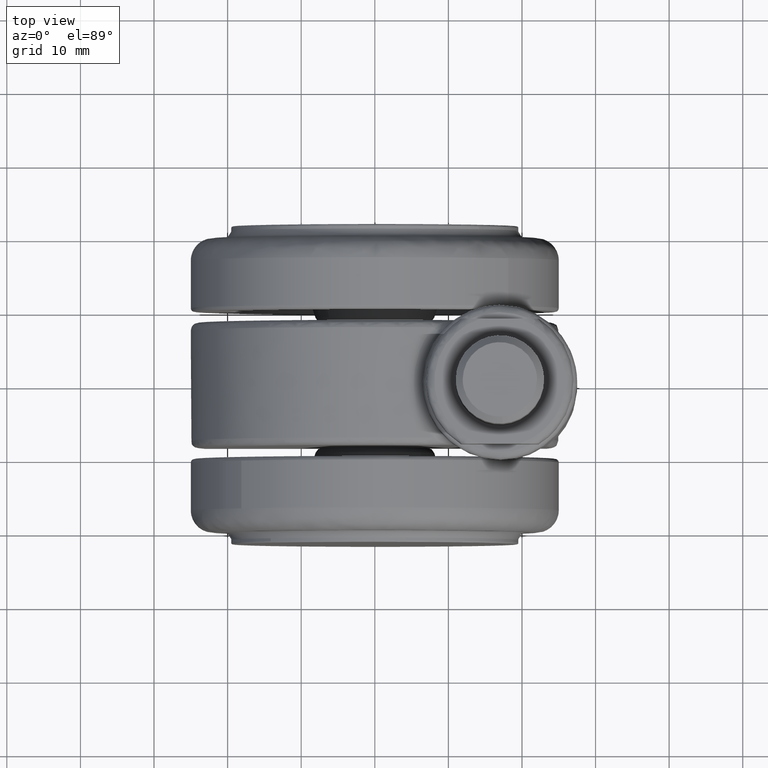
[diagram: clean part render]
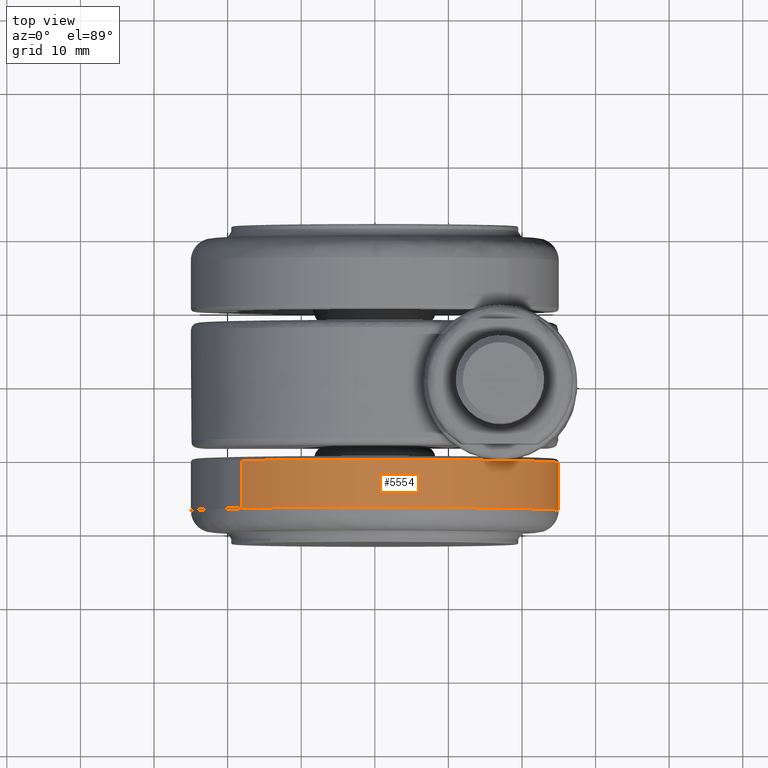
[diagram: same view with one face highlighted and labeled with its STEP entity id]
A machine part, top view. The second image highlights one B-rep face of the part: STEP entity #5554.
In plain terms, the highlighted face is a freeform B-spline surface patch.
Its self-contained STEP definition (entity closure, byte-faithful):
#5241=CARTESIAN_POINT('',(24.998026105095359,-10.499999998055420,0.314150997086493));
#5242=VERTEX_POINT('',#5241);
#5256=CARTESIAN_POINT('',(18.134359921646951,-10.499999999000540,-17.208863711243801));
#5257=VERTEX_POINT('',#5256);
#5258=CARTESIAN_POINT('',(24.998026105095359,-10.499999998055420,0.314150997086493));
#5259=CARTESIAN_POINT('',(24.999999999999996,-10.499999998061453,0.157081699798583));
#5260=CARTESIAN_POINT('',(24.999999999999989,-10.499999998067560,-1.213620E-015));
#5261=CARTESIAN_POINT('',(24.999999999999986,-10.499999998455463,-9.973988105134458));
#5262=CARTESIAN_POINT('',(18.134359921646954,-10.499999999000522,-17.208863711243819));
#5270=(BOUNDED_CURVE()B_SPLINE_CURVE(2,(#5258,#5259,#5260,#5261,#5262),.UNSPECIFIED.,.F.,.U.)B_SPLINE_CURVE_WITH_KNOTS((3,2,3),(0.247784295921709,0.250000000000000,0.371049520990958),.UNSPECIFIED.)CURVE()GEOMETRIC_REPRESENTATION_ITEM()RATIONAL_B_SPLINE_CURVE((0.994854295643969,0.997404141202285,1.0,0.858181664644527,0.853699661789174))REPRESENTATION_ITEM(''));
#5271=EDGE_CURVE('',#5242,#5257,#5270,.T.);
#5352=CARTESIAN_POINT('',(-18.134359921646951,-10.499999999000540,17.208863711243801));
#5353=VERTEX_POINT('',#5352);
#5369=CARTESIAN_POINT('',(0.0,-10.500000000000000,25.0));
#5370=VERTEX_POINT('',#5369);
#5371=CARTESIAN_POINT('',(-18.134359921646965,-10.499999999000522,17.208863711243819));
#5372=CARTESIAN_POINT('',(-10.740848205312052,-10.499999999587487,24.999999999999996));
#5373=CARTESIAN_POINT('',(0.0,-10.500000000000000,25.0));
#5381=(BOUNDED_CURVE()B_SPLINE_CURVE(2,(#5371,#5372,#5373),.UNSPECIFIED.,.F.,.U.)B_SPLINE_CURVE_WITH_KNOTS((3,3),(0.871049520990958,1.0),.UNSPECIFIED.)CURVE()GEOMETRIC_REPRESENTATION_ITEM()RATIONAL_B_SPLINE_CURVE((0.853699661789174,0.848925116542021,1.0))REPRESENTATION_ITEM(''));
#5382=EDGE_CURVE('',#5353,#5370,#5381,.T.);
#5384=CARTESIAN_POINT('',(0.0,-10.500000000000000,25.0));
#5385=CARTESIAN_POINT('',(24.687798247680206,-10.499999999027709,25.0));
#5386=CARTESIAN_POINT('',(24.998026105095359,-10.499999998055420,0.314150997086493));
#5394=(BOUNDED_CURVE()B_SPLINE_CURVE(2,(#5384,#5385,#5386),.UNSPECIFIED.,.F.,.U.)B_SPLINE_CURVE_WITH_KNOTS((3,3),(0.0,0.247784295921709),.UNSPECIFIED.)CURVE()GEOMETRIC_REPRESENTATION_ITEM()RATIONAL_B_SPLINE_CURVE((1.0,0.709702639984262,0.994854295643969))REPRESENTATION_ITEM(''));
#5395=EDGE_CURVE('',#5370,#5242,#5394,.T.);
#5420=CARTESIAN_POINT('',(18.134359913672391,-17.000000000057241,-17.208863719647230));
#5421=VERTEX_POINT('',#5420);
#5422=CARTESIAN_POINT('',(18.134359913672391,-17.000000000057241,-17.208863719647230));
#5423=CARTESIAN_POINT('',(18.134359921646951,-10.499999999000540,-17.208863711243801));
#5424=QUASI_UNIFORM_CURVE('',1,(#5422,#5423),.UNSPECIFIED.,.F.,.U.);
#5425=EDGE_CURVE('',#5421,#5257,#5424,.T.);
#5457=CARTESIAN_POINT('',(-18.134359913672391,-17.000000000057241,17.208863719647230));
#5458=VERTEX_POINT('',#5457);
#5474=CARTESIAN_POINT('',(-18.134359913672391,-17.000000000057241,17.208863719647230));
#5475=CARTESIAN_POINT('',(-18.134359921646951,-10.499999999000540,17.208863711243801));
#5476=QUASI_UNIFORM_CURVE('',1,(#5474,#5475),.UNSPECIFIED.,.F.,.U.);
#5477=EDGE_CURVE('',#5458,#5353,#5476,.T.);
#5484=CARTESIAN_POINT('',(-18.134359275307190,-17.162500000162758,17.208864392343848));
#5485=CARTESIAN_POINT('',(-0.925494882963342,-17.162500000162758,35.343223667651039));
#5486=CARTESIAN_POINT('',(17.208864392343848,-17.162500000162758,18.134359275307190));
#5487=CARTESIAN_POINT('',(35.343223667651039,-17.162500000162758,0.925494882963342));
#5488=CARTESIAN_POINT('',(18.134359275307190,-17.162500000162758,-17.208864392343848));
#5489=CARTESIAN_POINT('',(-18.134359275307190,-10.333437498002731,17.208864392343848));
#5490=CARTESIAN_POINT('',(-0.925494882963342,-10.333437498002734,35.343223667651039));
#5491=CARTESIAN_POINT('',(17.208864392343848,-10.333437498002731,18.134359275307190));
#5492=CARTESIAN_POINT('',(35.343223667651039,-10.333437498002734,0.925494882963342));
#5493=CARTESIAN_POINT('',(18.134359275307190,-10.333437498002731,-17.208864392343848));
#5501=(BOUNDED_SURFACE()B_SPLINE_SURFACE(2,1,((#5484,#5489),(#5485,#5490),(#5486,#5491),(#5487,#5492),(#5488,#5493)),.UNSPECIFIED.,.F.,.F.,.U.)B_SPLINE_SURFACE_WITH_KNOTS((3,2,3),(2,2),(0.0,41.421356237309503,82.842712474618992),(0.0,6.829062502160029),.UNSPECIFIED.)GEOMETRIC_REPRESENTATION_ITEM()RATIONAL_B_SPLINE_SURFACE(((1.0,1.0),(0.707106781186548,0.707106781186548),(1.0,1.0),(0.707106781186548,0.707106781186548),(1.0,1.0)))REPRESENTATION_ITEM('')SURFACE());
#5502=ORIENTED_EDGE('',*,*,#5271,.F.);
#5503=ORIENTED_EDGE('',*,*,#5395,.F.);
#5504=ORIENTED_EDGE('',*,*,#5382,.F.);
#5505=ORIENTED_EDGE('',*,*,#5477,.F.);
#5506=CARTESIAN_POINT('',(0.0,-17.0,25.0));
#5507=VERTEX_POINT('',#5506);
#5508=CARTESIAN_POINT('',(-18.134359913672405,-17.000000000057241,17.208863719647240));
#5509=CARTESIAN_POINT('',(-10.740848198450365,-17.000000000023629,24.999999999999989));
#5510=CARTESIAN_POINT('',(0.0,-17.0,25.0));
#5518=(BOUNDED_CURVE()B_SPLINE_CURVE(2,(#5508,#5509,#5510),.UNSPECIFIED.,.F.,.U.)B_SPLINE_CURVE_WITH_KNOTS((3,3),(0.871049521060892,1.0),.UNSPECIFIED.)CURVE()GEOMETRIC_REPRESENTATION_ITEM()RATIONAL_B_SPLINE_CURVE((0.853699661783996,0.848925116623953,1.0))REPRESENTATION_ITEM(''));
#5519=EDGE_CURVE('',#5458,#5507,#5518,.T.);
#5520=ORIENTED_EDGE('',*,*,#5519,.T.);
#5521=CARTESIAN_POINT('',(24.998026105095359,-17.000000000111360,0.314150997086522));
#5522=VERTEX_POINT('',#5521);
#5523=CARTESIAN_POINT('',(0.0,-17.0,25.0));
#5524=CARTESIAN_POINT('',(24.687798247680188,-17.000000000055689,25.000000000000004));
#5525=CARTESIAN_POINT('',(24.998026105095366,-17.000000000111367,0.314150997086522));
#5533=(BOUNDED_CURVE()B_SPLINE_CURVE(2,(#5523,#5524,#5525),.UNSPECIFIED.,.F.,.U.)B_SPLINE_CURVE_WITH_KNOTS((3,3),(0.0,0.247784295921709),.UNSPECIFIED.)CURVE()GEOMETRIC_REPRESENTATION_ITEM()RATIONAL_B_SPLINE_CURVE((1.0,0.709702639984262,0.994854295643969))REPRESENTATION_ITEM(''));
#5534=EDGE_CURVE('',#5507,#5522,#5533,.T.);
#5535=ORIENTED_EDGE('',*,*,#5534,.T.);
#5536=CARTESIAN_POINT('',(24.998026105095359,-17.000000000111360,0.314150997086522));
#5537=CARTESIAN_POINT('',(24.999999999999989,-17.000000000111019,0.157081699798598));
#5538=CARTESIAN_POINT('',(24.999999999999989,-17.000000000110671,5.516454E-016));
#5539=CARTESIAN_POINT('',(24.999999999999989,-17.000000000088459,-9.973988111848918));
#5540=CARTESIAN_POINT('',(18.134359913672405,-17.000000000057241,-17.208863719647240));
#5548=(BOUNDED_CURVE()B_SPLINE_CURVE(2,(#5536,#5537,#5538,#5539,#5540),.UNSPECIFIED.,.F.,.U.)B_SPLINE_CURVE_WITH_KNOTS((3,2,3),(0.247784295921709,0.250000000000000,0.371049521060892),.UNSPECIFIED.)CURVE()GEOMETRIC_REPRESENTATION_ITEM()RATIONAL_B_SPLINE_CURVE((0.994854295643968,0.997404141202285,1.0,0.858181664562594,0.853699661783996))REPRESENTATION_ITEM(''));
#5549=EDGE_CURVE('',#5522,#5421,#5548,.T.);
#5550=ORIENTED_EDGE('',*,*,#5549,.T.);
#5551=ORIENTED_EDGE('',*,*,#5425,.T.);
#5552=EDGE_LOOP('',(#5502,#5503,#5504,#5505,#5520,#5535,#5550,#5551));
#5553=FACE_OUTER_BOUND('',#5552,.T.);
#5554=ADVANCED_FACE('',(#5553),#5501,.T.);